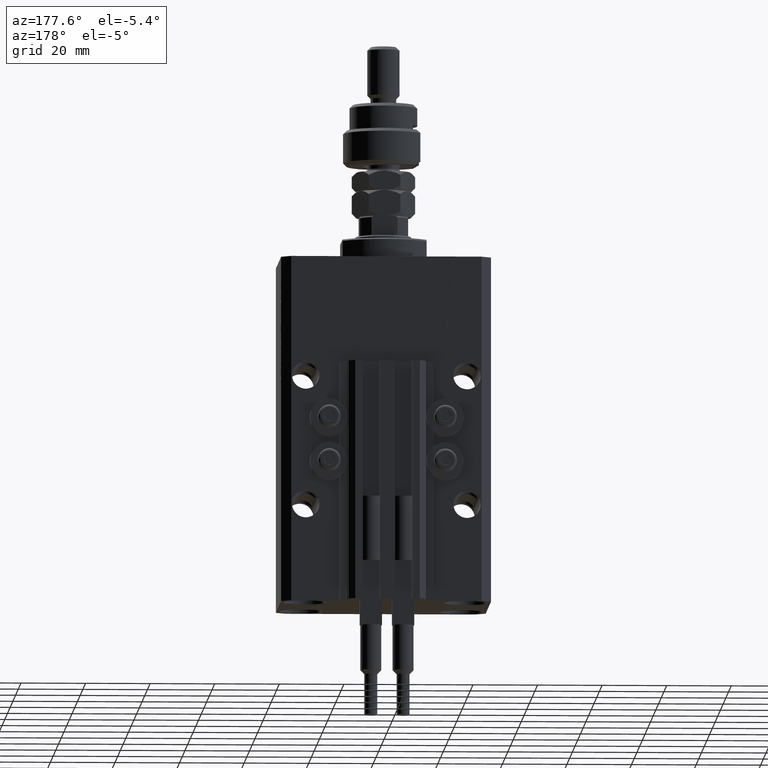
[diagram: clean part render]
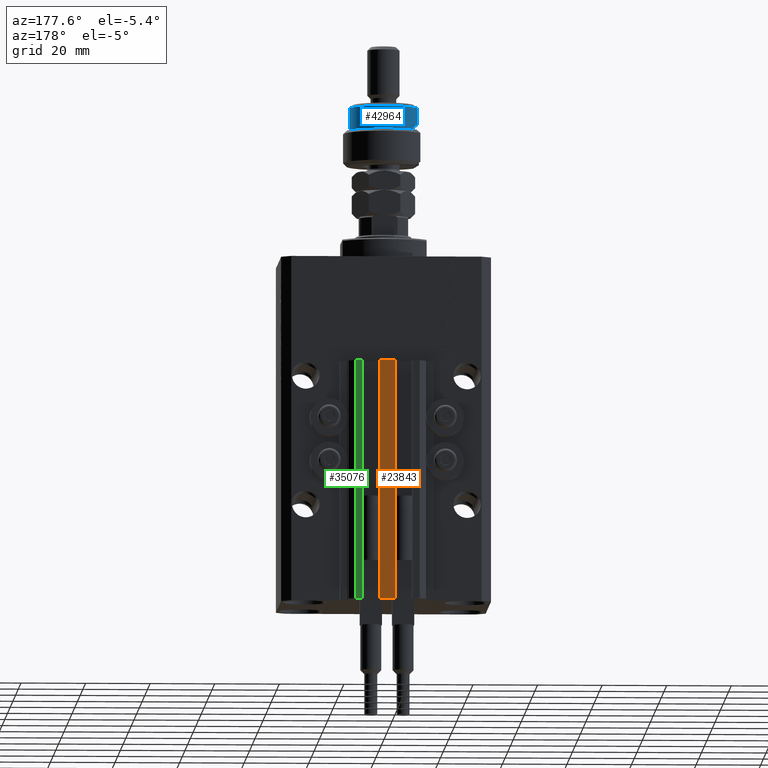
[diagram: same view with three faces highlighted in distinct colors, each labeled with its STEP entity id]
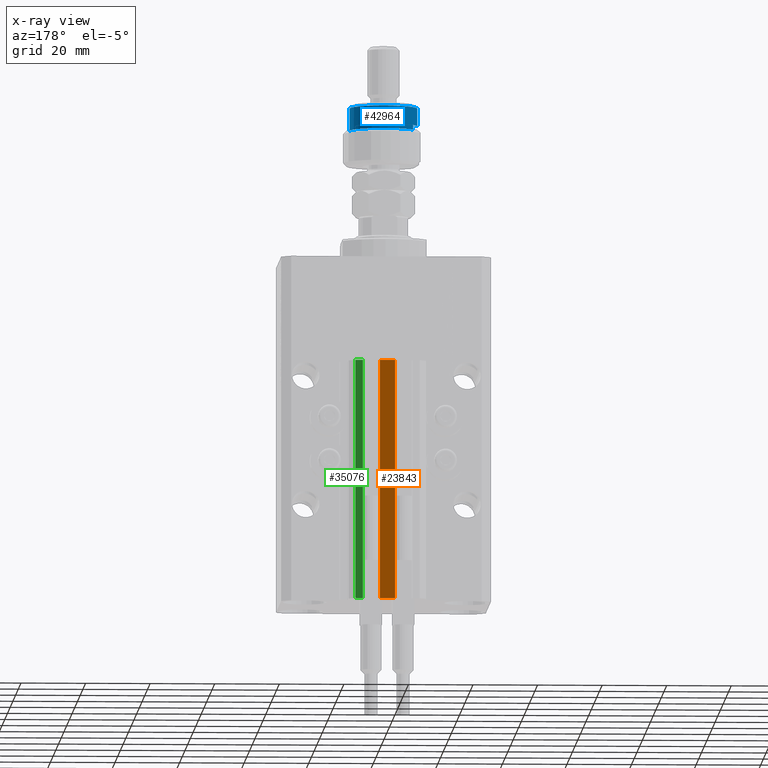
[diagram: x-ray of the same camera — body ghosted, the three highlighted faces saturated]
A machine part, auxiliary view with three faces highlighted in distinct colors.
The next image is the same camera in x-ray (body ghosted, the three faces saturated) — at least one of them is partly hidden behind the body in this view.
Their STEP definitions:

[orange] entity #23843 — the highlighted planar face has unit normal (0, -1, 0).
#429 = AXIS2_PLACEMENT_3D ( 'NONE', #28933, #44553, #32599 ) ;
#4715 = LINE ( 'NONE', #32491, #43144 ) ;
#6402 = CARTESIAN_POINT ( 'NONE',  ( 2.349999999999999645, 30.49999999999949907, -33.00000000000000000 ) ) ;
#7831 = ORIENTED_EDGE ( 'NONE', *, *, #23181, .F. ) ;
#8195 = CARTESIAN_POINT ( 'NONE',  ( -2.350000000000003197, 30.49999999999949907, -33.00000000000000000 ) ) ;
#10540 = VERTEX_POINT ( 'NONE', #24951 ) ;
#16369 = LINE ( 'NONE', #35586, #24964 ) ;
#16584 = EDGE_CURVE ( 'NONE', #10540, #32584, #4715, .T. ) ;
#17769 = VECTOR ( 'NONE', #50252, 1000.000000000000000 ) ;
#18450 = VERTEX_POINT ( 'NONE', #8195 ) ;
#23116 = EDGE_CURVE ( 'NONE', #50145, #18450, #40694, .T. ) ;
#23181 = EDGE_CURVE ( 'NONE', #50145, #10540, #30242, .T. ) ;
#23843 = ADVANCED_FACE ( 'NONE', ( #39887 ), #24519, .F. ) ;
#24519 = PLANE ( 'NONE',  #429 ) ;
#24951 = CARTESIAN_POINT ( 'NONE',  ( 2.349999999999999645, 30.49999999999949907, -107.0000000000000000 ) ) ;
#24964 = VECTOR ( 'NONE', #27256, 1000.000000000000000 ) ;
#27256 = DIRECTION ( 'NONE',  ( 1.000000000000000000, 0.000000000000000000, 0.000000000000000000 ) ) ;
#28933 = CARTESIAN_POINT ( 'NONE',  ( -2.350000000000003197, 30.49999999999949907, -107.0000000000000000 ) ) ;
#29226 = DIRECTION ( 'NONE',  ( 0.000000000000000000, 0.000000000000000000, 1.000000000000000000 ) ) ;
#29995 = CARTESIAN_POINT ( 'NONE',  ( -2.350000000000003197, 30.49999999999949907, -107.0000000000000000 ) ) ;
#30242 = LINE ( 'NONE', #29995, #17769 ) ;
#30397 = ORIENTED_EDGE ( 'NONE', *, *, #16584, .F. ) ;
#32491 = CARTESIAN_POINT ( 'NONE',  ( 2.349999999999999645, 30.49999999999949907, -107.0000000000000000 ) ) ;
#32584 = VERTEX_POINT ( 'NONE', #6402 ) ;
#32599 = DIRECTION ( 'NONE',  ( 0.000000000000000000, -0.000000000000000000, -1.000000000000000000 ) ) ;
#33537 = VECTOR ( 'NONE', #29226, 1000.000000000000000 ) ;
#35586 = CARTESIAN_POINT ( 'NONE',  ( -2.350000000000003197, 30.49999999999949907, -33.00000000000000000 ) ) ;
#35992 = ORIENTED_EDGE ( 'NONE', *, *, #23116, .T. ) ;
#36532 = CARTESIAN_POINT ( 'NONE',  ( -2.350000000000003197, 30.49999999999949907, -107.0000000000000000 ) ) ;
#39175 = ORIENTED_EDGE ( 'NONE', *, *, #45048, .T. ) ;
#39887 = FACE_OUTER_BOUND ( 'NONE', #47555, .T. ) ;
#40694 = LINE ( 'NONE', #36532, #33537 ) ;
#43144 = VECTOR ( 'NONE', #48841, 1000.000000000000000 ) ;
#43695 = CARTESIAN_POINT ( 'NONE',  ( -2.350000000000003197, 30.49999999999949907, -107.0000000000000000 ) ) ;
#44553 = DIRECTION ( 'NONE',  ( 0.000000000000000000, -1.000000000000000000, 0.000000000000000000 ) ) ;
#45048 = EDGE_CURVE ( 'NONE', #18450, #32584, #16369, .T. ) ;
#47555 = EDGE_LOOP ( 'NONE', ( #39175, #30397, #7831, #35992 ) ) ;
#48841 = DIRECTION ( 'NONE',  ( 0.000000000000000000, 0.000000000000000000, 1.000000000000000000 ) ) ;
#50145 = VERTEX_POINT ( 'NONE', #43695 ) ;
#50252 = DIRECTION ( 'NONE',  ( 1.000000000000000000, 0.000000000000000000, 0.000000000000000000 ) ) ;

[blue] entity #42964 — the highlighted cylindrical surface (edge-blend (fillet) strip) has radius 10.5 mm, axis along (-0, -0, -1).
#44 = CARTESIAN_POINT ( 'NONE',  ( 0.000000000000000000, 0.000000000000000000, 17.99999999999999645 ) ) ;
#2469 = CARTESIAN_POINT ( 'NONE',  ( -8.944271909999159220, 5.500000000000000000, 19.00000000000000000 ) ) ;
#2725 = VERTEX_POINT ( 'NONE', #48412 ) ;
#3067 = CARTESIAN_POINT ( 'NONE',  ( 0.000000000000000000, 0.000000000000000000, 11.00000000000000000 ) ) ;
#4037 = ORIENTED_EDGE ( 'NONE', *, *, #15608, .T. ) ;
#4190 = CARTESIAN_POINT ( 'NONE',  ( 10.50000000000000000, 1.285879139104720831E-15, 19.00000000000000000 ) ) ;
#4952 = DIRECTION ( 'NONE',  ( 0.000000000000000000, 0.000000000000000000, -1.000000000000000000 ) ) ;
#4968 = CIRCLE ( 'NONE', #42283, 10.50000000000000000 ) ;
#5207 = EDGE_LOOP ( 'NONE', ( #7949, #4037, #26038, #21346, #50231, #9212 ) ) ;
#5214 = DIRECTION ( 'NONE',  ( -1.000000000000000000, 0.000000000000000000, 0.000000000000000000 ) ) ;
#5917 = CARTESIAN_POINT ( 'NONE',  ( -10.50000000000000000, 0.000000000000000000, 12.50000000000000000 ) ) ;
#7949 = ORIENTED_EDGE ( 'NONE', *, *, #26410, .T. ) ;
#8144 = VERTEX_POINT ( 'NONE', #49196 ) ;
#8842 = CARTESIAN_POINT ( 'NONE',  ( -10.50000000000000000, 0.000000000000000000, 17.99999999999999645 ) ) ;
#9087 = CARTESIAN_POINT ( 'NONE',  ( 0.000000000000000000, 0.000000000000000000, 12.50000000000000000 ) ) ;
#9212 = ORIENTED_EDGE ( 'NONE', *, *, #34463, .F. ) ;
#9594 = AXIS2_PLACEMENT_3D ( 'NONE', #44, #39490, #35585 ) ;
#10507 = FACE_OUTER_BOUND ( 'NONE', #5207, .T. ) ;
#11574 = VECTOR ( 'NONE', #50675, 1000.000000000000000 ) ;
#12476 = EDGE_CURVE ( 'NONE', #2725, #19591, #46850, .T. ) ;
#14728 = DIRECTION ( 'NONE',  ( 1.000000000000000000, 0.000000000000000000, 0.000000000000000000 ) ) ;
#15608 = EDGE_CURVE ( 'NONE', #8144, #33727, #47552, .T. ) ;
#17329 = DIRECTION ( 'NONE',  ( -0.000000000000000000, -0.000000000000000000, -1.000000000000000000 ) ) ;
#17787 = DIRECTION ( 'NONE',  ( -1.000000000000000000, 0.000000000000000000, 0.000000000000000000 ) ) ;
#19591 = VERTEX_POINT ( 'NONE', #21424 ) ;
#20379 = CIRCLE ( 'NONE', #9594, 10.50000000000000000 ) ;
#20597 = VECTOR ( 'NONE', #22166, 1000.000000000000000 ) ;
#21224 = AXIS2_PLACEMENT_3D ( 'NONE', #3067, #38377, #14728 ) ;
#21346 = ORIENTED_EDGE ( 'NONE', *, *, #12476, .T. ) ;
#21424 = CARTESIAN_POINT ( 'NONE',  ( -8.944271909999159220, 5.500000000000000000, 12.50000000000000000 ) ) ;
#22166 = DIRECTION ( 'NONE',  ( 0.000000000000000000, 0.000000000000000000, 1.000000000000000000 ) ) ;
#26038 = ORIENTED_EDGE ( 'NONE', *, *, #30134, .T. ) ;
#26410 = EDGE_CURVE ( 'NONE', #41502, #8144, #20379, .T. ) ;
#30134 = EDGE_CURVE ( 'NONE', #33727, #2725, #32837, .T. ) ;
#32474 = VERTEX_POINT ( 'NONE', #5917 ) ;
#32837 = CIRCLE ( 'NONE', #21224, 10.50000000000000000 ) ;
#33727 = VERTEX_POINT ( 'NONE', #40140 ) ;
#34463 = EDGE_CURVE ( 'NONE', #41502, #32474, #40214, .T. ) ;
#35585 = DIRECTION ( 'NONE',  ( 1.000000000000000000, 0.000000000000000000, 0.000000000000000000 ) ) ;
#37808 = EDGE_CURVE ( 'NONE', #32474, #19591, #4968, .T. ) ;
#38377 = DIRECTION ( 'NONE',  ( 0.000000000000000000, 0.000000000000000000, 1.000000000000000000 ) ) ;
#39490 = DIRECTION ( 'NONE',  ( 0.000000000000000000, 0.000000000000000000, -1.000000000000000000 ) ) ;
#40140 = CARTESIAN_POINT ( 'NONE',  ( 10.50000000000000000, 1.285879139104720831E-15, 11.00000000000000000 ) ) ;
#40214 = LINE ( 'NONE', #40478, #48814 ) ;
#40478 = CARTESIAN_POINT ( 'NONE',  ( -10.50000000000000000, 0.000000000000000000, 19.00000000000000000 ) ) ;
#41502 = VERTEX_POINT ( 'NONE', #8842 ) ;
#42198 = CYLINDRICAL_SURFACE ( 'NONE', #49816, 10.50000000000000000 ) ;
#42283 = AXIS2_PLACEMENT_3D ( 'NONE', #9087, #4952, #5214 ) ;
#42964 = ADVANCED_FACE ( 'NONE', ( #10507 ), #42198, .T. ) ;
#45857 = DIRECTION ( 'NONE',  ( -0.000000000000000000, -0.000000000000000000, -1.000000000000000000 ) ) ;
#46850 = LINE ( 'NONE', #2469, #20597 ) ;
#47552 = LINE ( 'NONE', #4190, #11574 ) ;
#48412 = CARTESIAN_POINT ( 'NONE',  ( -8.944271909999159220, 5.500000000000000000, 11.00000000000000000 ) ) ;
#48814 = VECTOR ( 'NONE', #17329, 1000.000000000000000 ) ;
#49196 = CARTESIAN_POINT ( 'NONE',  ( 10.50000000000000000, 1.285879139104720831E-15, 17.99999999999999645 ) ) ;
#49747 = CARTESIAN_POINT ( 'NONE',  ( 0.000000000000000000, 0.000000000000000000, 19.00000000000000000 ) ) ;
#49816 = AXIS2_PLACEMENT_3D ( 'NONE', #49747, #45857, #17787 ) ;
#50231 = ORIENTED_EDGE ( 'NONE', *, *, #37808, .F. ) ;
#50675 = DIRECTION ( 'NONE',  ( -0.000000000000000000, -0.000000000000000000, -1.000000000000000000 ) ) ;

[green] entity #35076 — the highlighted planar face has unit normal (-0, 1, 0).
#1628 = LINE ( 'NONE', #41075, #25796 ) ;
#2461 = CARTESIAN_POINT ( 'NONE',  ( 7.649999999999995026, 30.49999999999949196, -107.0000000000000000 ) ) ;
#6420 = VERTEX_POINT ( 'NONE', #14954 ) ;
#7369 = VECTOR ( 'NONE', #17124, 1000.000000000000000 ) ;
#7917 = CARTESIAN_POINT ( 'NONE',  ( 9.999999999999994671, 30.49999999999949551, -107.0000000000000000 ) ) ;
#9197 = DIRECTION ( 'NONE',  ( 0.000000000000000000, 0.000000000000000000, 1.000000000000000000 ) ) ;
#10945 = EDGE_CURVE ( 'NONE', #6420, #50402, #41791, .T. ) ;
#14954 = CARTESIAN_POINT ( 'NONE',  ( 9.999999999999994671, 30.49999999999949551, -33.00000000000000000 ) ) ;
#17124 = DIRECTION ( 'NONE',  ( -1.000000000000000000, -1.476360405086644852E-15, 0.000000000000000000 ) ) ;
#19714 = CARTESIAN_POINT ( 'NONE',  ( 7.649999999999995026, 30.49999999999949196, -33.00000000000000000 ) ) ;
#19854 = DIRECTION ( 'NONE',  ( -1.000000000000000000, -1.476360405086644852E-15, 0.000000000000000000 ) ) ;
#20954 = CARTESIAN_POINT ( 'NONE',  ( 9.999999999999994671, 30.49999999999949551, -107.0000000000000000 ) ) ;
#22037 = CARTESIAN_POINT ( 'NONE',  ( 9.999999999999994671, 30.49999999999949551, -33.00000000000000000 ) ) ;
#23222 = DIRECTION ( 'NONE',  ( -1.476360405086644852E-15, 1.000000000000000000, 0.000000000000000000 ) ) ;
#24218 = ORIENTED_EDGE ( 'NONE', *, *, #50172, .F. ) ;
#25539 = VECTOR ( 'NONE', #9197, 1000.000000000000000 ) ;
#25796 = VECTOR ( 'NONE', #34023, 1000.000000000000000 ) ;
#29696 = AXIS2_PLACEMENT_3D ( 'NONE', #7917, #23222, #19854 ) ;
#30320 = ORIENTED_EDGE ( 'NONE', *, *, #10945, .F. ) ;
#32418 = EDGE_CURVE ( 'NONE', #39555, #33873, #41478, .T. ) ;
#33414 = DIRECTION ( 'NONE',  ( -1.000000000000000000, -1.476360405086644852E-15, 0.000000000000000000 ) ) ;
#33873 = VERTEX_POINT ( 'NONE', #2461 ) ;
#34023 = DIRECTION ( 'NONE',  ( 0.000000000000000000, 0.000000000000000000, 1.000000000000000000 ) ) ;
#35076 = ADVANCED_FACE ( 'NONE', ( #47911 ), #35697, .T. ) ;
#35275 = EDGE_CURVE ( 'NONE', #33873, #50402, #40891, .T. ) ;
#35697 = PLANE ( 'NONE',  #29696 ) ;
#37018 = EDGE_LOOP ( 'NONE', ( #30320, #24218, #49954, #40824 ) ) ;
#39555 = VERTEX_POINT ( 'NONE', #49000 ) ;
#40824 = ORIENTED_EDGE ( 'NONE', *, *, #35275, .T. ) ;
#40891 = LINE ( 'NONE', #44532, #25539 ) ;
#41075 = CARTESIAN_POINT ( 'NONE',  ( 9.999999999999994671, 30.49999999999949551, -107.0000000000000000 ) ) ;
#41478 = LINE ( 'NONE', #20954, #43705 ) ;
#41791 = LINE ( 'NONE', #22037, #7369 ) ;
#43705 = VECTOR ( 'NONE', #33414, 1000.000000000000000 ) ;
#44532 = CARTESIAN_POINT ( 'NONE',  ( 7.649999999999995026, 30.49999999999949196, -107.0000000000000000 ) ) ;
#47911 = FACE_OUTER_BOUND ( 'NONE', #37018, .T. ) ;
#49000 = CARTESIAN_POINT ( 'NONE',  ( 9.999999999999994671, 30.49999999999949551, -107.0000000000000000 ) ) ;
#49954 = ORIENTED_EDGE ( 'NONE', *, *, #32418, .T. ) ;
#50172 = EDGE_CURVE ( 'NONE', #39555, #6420, #1628, .T. ) ;
#50402 = VERTEX_POINT ( 'NONE', #19714 ) ;